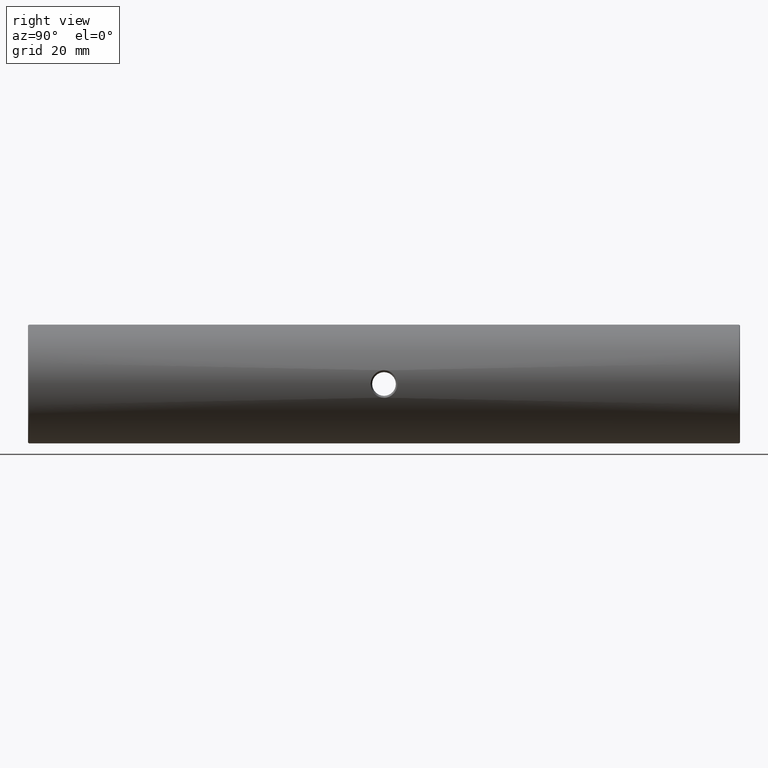
[diagram: clean part render]
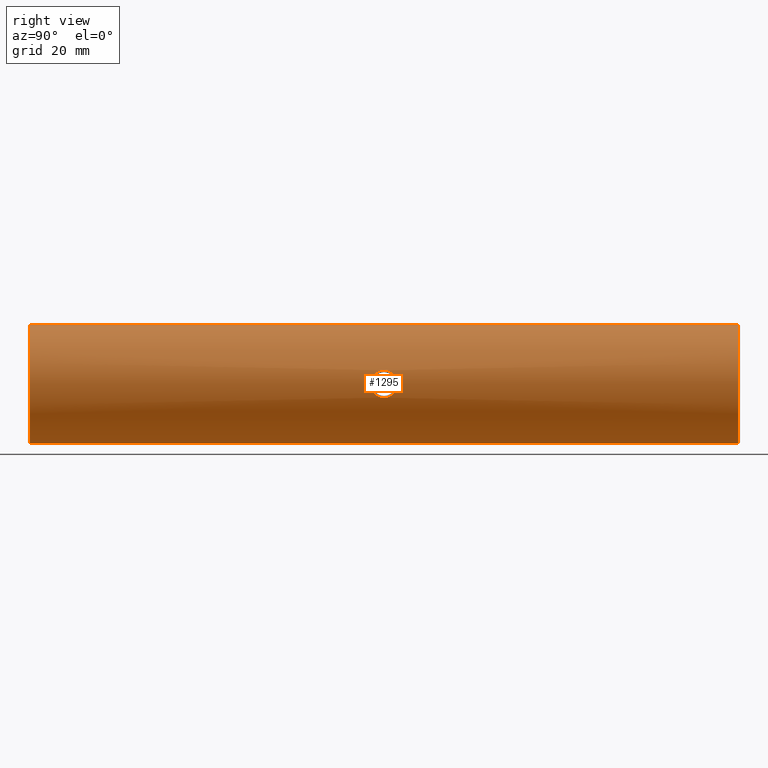
[diagram: same view with one face highlighted and labeled with its STEP entity id]
A machine part, right view. The second image highlights one B-rep face of the part: STEP entity #1295.
In plain terms, the highlighted cylindrical surface (partial cylindrical patch) has radius 12.5 mm, axis along (-0, -1, -0).
Its self-contained STEP definition (entity closure, byte-faithful):
#61 = CARTESIAN_POINT ( 'NONE',  ( -10.34847189391649813, 1.398252184769385620, 47.09071877678781703 ) ) ;
#99 = FACE_OUTER_BOUND ( 'NONE', #510, .T. ) ;
#100 = AXIS2_PLACEMENT_3D ( 'NONE', #2360, #2317, #3416 ) ;
#133 = CARTESIAN_POINT ( 'NONE',  ( -22.50520183104453409, 76.14825218476937607, 62.50000000000000000 ) ) ;
#191 = CARTESIAN_POINT ( 'NONE',  ( -10.34847154019207593, 1.401086072872692601, 52.90927974513801502 ) ) ;
#248 = CARTESIAN_POINT ( 'NONE',  ( -10.03912386684487501, 4.066135811496529584, 50.93725250157488915 ) ) ;
#295 = CARTESIAN_POINT ( 'NONE',  ( -10.19775323581732884, -0.4616773628604159962, 47.81021797965166087 ) ) ;
#327 = CARTESIAN_POINT ( 'NONE',  ( -22.50520183104453409, -73.35174781523060972, 37.50000000000000711 ) ) ;
#330 = CARTESIAN_POINT ( 'NONE',  ( -10.02675186171662070, -1.322443306135970165, 50.75721055769167123 ) ) ;
#349 = CARTESIAN_POINT ( 'NONE',  ( -10.34401387725285559, 1.031674240312174362, 52.89084654493358784 ) ) ;
#359 = VERTEX_POINT ( 'NONE', #2874 ) ;
#420 = CARTESIAN_POINT ( 'NONE',  ( -22.50520183104453409, 76.39825218476937607, 50.00000000000000000 ) ) ;
#431 = ORIENTED_EDGE ( 'NONE', *, *, #2286, .T. ) ;
#456 = CARTESIAN_POINT ( 'NONE',  ( -22.50520183104453409, 76.14825218476937607, 37.50000000000000711 ) ) ;
#459 = CARTESIAN_POINT ( 'NONE',  ( -10.00518440457559777, 4.209659017141483162, 50.09320650238487360 ) ) ;
#476 = CARTESIAN_POINT ( 'NONE',  ( -10.02677590329418678, 4.118849129201301196, 49.24228715533268286 ) ) ;
#489 = EDGE_CURVE ( 'NONE', #2931, #1799, #748, .T. ) ;
#510 = EDGE_LOOP ( 'NONE', ( #2596, #431, #1460, #3094 ) ) ;
#511 = CARTESIAN_POINT ( 'NONE',  ( -10.19821154778018801, 3.255369150901111119, 47.80765360768034355 ) ) ;
#574 = CARTESIAN_POINT ( 'NONE',  ( -10.02677036316765324, -1.322359924719981539, 49.24218911787531994 ) ) ;
#595 = CARTESIAN_POINT ( 'NONE',  ( -10.01064372293302185, -1.390416779116984802, 50.38099164021094367 ) ) ;
#687 = CARTESIAN_POINT ( 'NONE',  ( -10.07084455742824147, -1.127609090102695610, 51.29153715517061585 ) ) ;
#710 = CARTESIAN_POINT ( 'NONE',  ( -10.28116133936228849, 2.647623010313839398, 52.61312323643211641 ) ) ;
#748 = LINE ( 'NONE', #2315, #1986 ) ;
#771 = CARTESIAN_POINT ( 'NONE',  ( -10.01384831664376662, 4.173523746012510749, 50.47415274408399455 ) ) ;
#787 = ORIENTED_EDGE ( 'NONE', *, *, #1135, .T. ) ;
#807 = AXIS2_PLACEMENT_3D ( 'NONE', #829, #2687, #2183 ) ;
#829 = CARTESIAN_POINT ( 'NONE',  ( -22.50520183104453409, -73.35174781523060972, 50.00000000000000000 ) ) ;
#833 = CARTESIAN_POINT ( 'NONE',  ( -10.13104527352238726, -0.8357329463647467094, 48.22352196541852010 ) ) ;
#854 = CARTESIAN_POINT ( 'NONE',  ( -10.03928546546168654, -1.268904155982395032, 49.06091485635030125 ) ) ;
#966 = CARTESIAN_POINT ( 'NONE',  ( -10.13100719875638944, -0.8359003745979826094, 51.77608148389530385 ) ) ;
#985 = CARTESIAN_POINT ( 'NONE',  ( -10.34847154019207593, 1.401086072872692601, 52.90927974513801502 ) ) ;
#987 = CARTESIAN_POINT ( 'NONE',  ( -10.32961809028129530, 2.135293394376611698, 47.16670927387669110 ) ) ;
#1051 = CARTESIAN_POINT ( 'NONE',  ( -10.15294739807879765, 3.517539804955810645, 51.92107485672841705 ) ) ;
#1114 = CARTESIAN_POINT ( 'NONE',  ( -10.00520407681040602, -1.413074357631388223, 50.09552809953438413 ) ) ;
#1123 = CARTESIAN_POINT ( 'NONE',  ( -22.50520183104453409, 76.39825218476937607, 62.50000000000000000 ) ) ;
#1135 = EDGE_CURVE ( 'NONE', #359, #2135, #3179, .T. ) ;
#1152 = CYLINDRICAL_SURFACE ( 'NONE', #3155, 12.49999999999999645 ) ;
#1243 = CARTESIAN_POINT ( 'NONE',  ( -10.32931247817809961, 2.139314989562814073, 52.83196653070409354 ) ) ;
#1295 = ADVANCED_FACE ( 'NONE', ( #2508, #99 ), #1152, .T. ) ;
#1355 = CARTESIAN_POINT ( 'NONE',  ( -10.15309026959583960, -0.7201977725136559094, 48.07808007598483613 ) ) ;
#1396 = CARTESIAN_POINT ( 'NONE',  ( -10.00519734990737142, -1.413097615887320080, 49.80982674692157985 ) ) ;
#1433 = CARTESIAN_POINT ( 'NONE',  ( -10.22067027174310816, -0.3289239817097731056, 52.32705980228893594 ) ) ;
#1460 = ORIENTED_EDGE ( 'NONE', *, *, #1728, .T. ) ;
#1486 = DIRECTION ( 'NONE',  ( -0.0000000000000000000, -1.000000000000000000, -0.0000000000000000000 ) ) ;
#1521 = CARTESIAN_POINT ( 'NONE',  ( -10.28138215996620275, 2.645685024799213636, 47.38584113131452114 ) ) ;
#1523 = VERTEX_POINT ( 'NONE', #133 ) ;
#1551 = CARTESIAN_POINT ( 'NONE',  ( -10.02657681141777957, 4.119691500564677256, 50.75422238455530533 ) ) ;
#1583 = CARTESIAN_POINT ( 'NONE',  ( -10.22044804822626318, -0.3177678142618628465, 47.68777784861504898 ) ) ;
#1603 = CARTESIAN_POINT ( 'NONE',  ( -10.32954370538267241, 0.6599845765317551294, 47.16701032399803495 ) ) ;
#1637 = CARTESIAN_POINT ( 'NONE',  ( -22.50520183104453409, -73.35174781523060972, 62.50000000000000000 ) ) ;
#1655 = CARTESIAN_POINT ( 'NONE',  ( -10.01393814977552310, -1.376641194406627688, 50.47655221270572667 ) ) ;
#1675 = CARTESIAN_POINT ( 'NONE',  ( -10.26514075146268290, -0.02094479338464379573, 52.54036784948635841 ) ) ;
#1728 = EDGE_CURVE ( 'NONE', #2628, #1799, #1922, .T. ) ;
#1747 = CARTESIAN_POINT ( 'NONE',  ( -10.08992494500196990, -1.039449521787509267, 51.46152594163833527 ) ) ;
#1769 = CARTESIAN_POINT ( 'NONE',  ( -10.26240494946076964, 2.806784448226856021, 47.47501714752255708 ) ) ;
#1799 = VERTEX_POINT ( 'NONE', #327 ) ;
#1836 = CARTESIAN_POINT ( 'NONE',  ( -10.00523732347763328, 4.209438793494718389, 49.80666152472035435 ) ) ;
#1894 = CARTESIAN_POINT ( 'NONE',  ( -10.08961095990384393, -1.040983855268374558, 48.54098388018955745 ) ) ;
#1922 = CIRCLE ( 'NONE', #807, 12.49999999999999645 ) ;
#1986 = VECTOR ( 'NONE', #2686, 1000.000000000000000 ) ;
#2013 = DIRECTION ( 'NONE',  ( 0.0000000000000000000, 0.0000000000000000000, -1.000000000000000000 ) ) ;
#2052 = CARTESIAN_POINT ( 'NONE',  ( -10.19795443141096847, 3.257006472572737454, 52.19097686571278416 ) ) ;
#2066 = CARTESIAN_POINT ( 'NONE',  ( -10.08950009456848029, 3.837971256596480085, 51.45792308326933551 ) ) ;
#2100 = ORIENTED_EDGE ( 'NONE', *, *, #2454, .T. ) ;
#2135 = VERTEX_POINT ( 'NONE', #985 ) ;
#2183 = DIRECTION ( 'NONE',  ( 0.0000000000000000000, 0.0000000000000000000, 1.000000000000000000 ) ) ;
#2186 = CARTESIAN_POINT ( 'NONE',  ( -10.34845463298328916, 1.026200419320157486, 47.09079090336732776 ) ) ;
#2210 = VECTOR ( 'NONE', #2951, 1000.000000000000000 ) ;
#2215 = LINE ( 'NONE', #1123, #2210 ) ;
#2244 = CARTESIAN_POINT ( 'NONE',  ( -10.31357678706533854, 0.4914312575701882402, 52.76042022121068698 ) ) ;
#2286 = EDGE_CURVE ( 'NONE', #1523, #2628, #2215, .T. ) ;
#2301 = CARTESIAN_POINT ( 'NONE',  ( -10.32641410112917946, 0.6672506221653226044, 52.81577975407621750 ) ) ;
#2315 = CARTESIAN_POINT ( 'NONE',  ( -22.50520183104453409, 76.39825218476937607, 37.50000000000000711 ) ) ;
#2317 = DIRECTION ( 'NONE',  ( -0.0000000000000000000, -1.000000000000000000, -0.0000000000000000000 ) ) ;
#2320 = CARTESIAN_POINT ( 'NONE',  ( -10.13051884922378854, 3.634910052844979145, 51.77268452503543017 ) ) ;
#2360 = CARTESIAN_POINT ( 'NONE',  ( -22.50520183104453409, 76.14825218476937607, 50.00000000000000000 ) ) ;
#2426 = CARTESIAN_POINT ( 'NONE',  ( -10.28120580035106713, 0.1491743863579614304, 47.38666087812494965 ) ) ;
#2454 = EDGE_CURVE ( 'NONE', #2135, #359, #2694, .T. ) ;
#2508 = FACE_BOUND ( 'NONE', #2662, .T. ) ;
#2594 = CARTESIAN_POINT ( 'NONE',  ( -10.34848894705066691, 1.765824933951804621, 47.09064751851789765 ) ) ;
#2596 = ORIENTED_EDGE ( 'NONE', *, *, #3344, .T. ) ;
#2611 = CARTESIAN_POINT ( 'NONE',  ( -10.22016270266419191, 3.116156845041651469, 52.31070717733684461 ) ) ;
#2627 = CARTESIAN_POINT ( 'NONE',  ( -10.01064152821728648, 4.186927187749965640, 50.38093568510177533 ) ) ;
#2628 = VERTEX_POINT ( 'NONE', #1637 ) ;
#2644 = CARTESIAN_POINT ( 'NONE',  ( -10.13120772190445784, 3.643678481295797855, 48.20895563089929681 ) ) ;
#2662 = EDGE_LOOP ( 'NONE', ( #787, #2100 ) ) ;
#2675 = CARTESIAN_POINT ( 'NONE',  ( -10.26201457399352002, -0.01335821455696050396, 47.47692398635977185 ) ) ;
#2686 = DIRECTION ( 'NONE',  ( -0.0000000000000000000, -1.000000000000000000, -0.0000000000000000000 ) ) ;
#2687 = DIRECTION ( 'NONE',  ( 0.0000000000000000000, 1.000000000000000000, 0.0000000000000000000 ) ) ;
#2694 = B_SPLINE_CURVE_WITH_KNOTS ( 'NONE', 3,
 ( #191, #2881, #1243, #710, #3151, #2611, #2052, #1051, #2320, #2066, #2897, #248, #1551, #771, #2627, #3405, #459, #1836, #3170, #476, #3120, #3135, #2644, #511, #2915, #1769, #1521, #987, #2594, #3105 ),
 .UNSPECIFIED., .F., .F.,
 ( 4, 2, 2, 2, 2, 2, 2, 2, 2, 2, 2, 2, 2, 2, 4 ),
 ( 0.5000000000000000000, 0.5624999999999980016, 0.5937499999999970024, 0.6249999999999960032, 0.6562499999999950040, 0.6874999999999940048, 0.7187499999999928946, 0.7343749999999930056, 0.7499999999999930056, 0.7812499999999942268, 0.8124999999999953371, 0.8749999999999966693, 0.9062499999999974465, 0.9374999999999981126, 1.000000000000000000 ),
 .UNSPECIFIED. ) ;
#2750 = CARTESIAN_POINT ( 'NONE',  ( -10.34847154019207593, 1.401086072872692601, 52.90927974513801502 ) ) ;
#2824 = CARTESIAN_POINT ( 'NONE',  ( -10.15310274897953491, -0.7201770143489230058, 51.92207674289412012 ) ) ;
#2874 = CARTESIAN_POINT ( 'NONE',  ( -10.34847189391649813, 1.398252184769385620, 47.09071877678781703 ) ) ;
#2881 = CARTESIAN_POINT ( 'NONE',  ( -10.34839696664155184, 1.768149378132063632, 52.90896813174228441 ) ) ;
#2897 = CARTESIAN_POINT ( 'NONE',  ( -10.07078360413765949, 3.924386101507641111, 51.29104044072172996 ) ) ;
#2915 = CARTESIAN_POINT ( 'NONE',  ( -10.22069015971748840, 3.112715133785438848, 47.68647738587846163 ) ) ;
#2931 = VERTEX_POINT ( 'NONE', #456 ) ;
#2951 = DIRECTION ( 'NONE',  ( -0.0000000000000000000, -1.000000000000000000, -0.0000000000000000000 ) ) ;
#2977 = CARTESIAN_POINT ( 'NONE',  ( -10.07065230753339335, -1.128473363181045963, 48.71045361150564901 ) ) ;
#2996 = CARTESIAN_POINT ( 'NONE',  ( -10.00959453156565893, -1.395018423955156184, 49.61878162586664587 ) ) ;
#3058 = CIRCLE ( 'NONE', #100, 12.49999999999999645 ) ;
#3087 = CARTESIAN_POINT ( 'NONE',  ( -10.03926934905746293, -1.268979855236199716, 50.93906143870370329 ) ) ;
#3094 = ORIENTED_EDGE ( 'NONE', *, *, #489, .F. ) ;
#3105 = CARTESIAN_POINT ( 'NONE',  ( -10.34847189391649813, 1.398252184769385620, 47.09071877678781703 ) ) ;
#3120 = CARTESIAN_POINT ( 'NONE',  ( -10.03956905279386369, 4.064168843762201000, 49.05718252072968966 ) ) ;
#3135 = CARTESIAN_POINT ( 'NONE',  ( -10.08673579309597379, 3.852910402659721179, 48.53189826306935828 ) ) ;
#3151 = CARTESIAN_POINT ( 'NONE',  ( -10.26171685815563350, 2.812244921916734253, 52.52163236096693311 ) ) ;
#3155 = AXIS2_PLACEMENT_3D ( 'NONE', #420, #1486, #2013 ) ;
#3170 = CARTESIAN_POINT ( 'NONE',  ( -10.00964959997098624, 4.191281611593790757, 49.61735547849352912 ) ) ;
#3179 = B_SPLINE_CURVE_WITH_KNOTS ( 'NONE', 3,
 ( #61, #2186, #1603, #2426, #2675, #1583, #295, #1355, #833, #1894, #2977, #854, #574, #2996, #1396, #1114, #3255, #595, #1655, #330, #3087, #687, #1747, #966, #2824, #1433, #1675, #2244, #2301, #349, #3351, #2750 ),
 .UNSPECIFIED., .F., .F.,
 ( 4, 2, 2, 2, 2, 2, 2, 2, 2, 2, 2, 2, 2, 2, 2, 4 ),
 ( 0.0000000000000000000, 0.06249999999999891753, 0.09374999999999837630, 0.1249999999999978351, 0.1562499999999972800, 0.1874999999999967526, 0.2187499999999962252, 0.2499999999999956701, 0.2656249999999959477, 0.2812499999999962252, 0.3124999999999968359, 0.3437499999999975020, 0.3749999999999980571, 0.4374999999999992228, 0.4687499999999996114, 0.5000000000000000000 ),
 .UNSPECIFIED. ) ;
#3255 = CARTESIAN_POINT ( 'NONE',  ( -10.00627837453443547, -1.408621410732932677, 50.18986673007002253 ) ) ;
#3344 = EDGE_CURVE ( 'NONE', #2931, #1523, #3058, .T. ) ;
#3351 = CARTESIAN_POINT ( 'NONE',  ( -10.34850882696734153, 1.217554420243002866, 52.90943555183590519 ) ) ;
#3405 = CARTESIAN_POINT ( 'NONE',  ( -10.00627509750832544, 4.205142563660553279, 50.18968306952479708 ) ) ;
#3416 = DIRECTION ( 'NONE',  ( 0.0000000000000000000, 0.0000000000000000000, 1.000000000000000000 ) ) ;